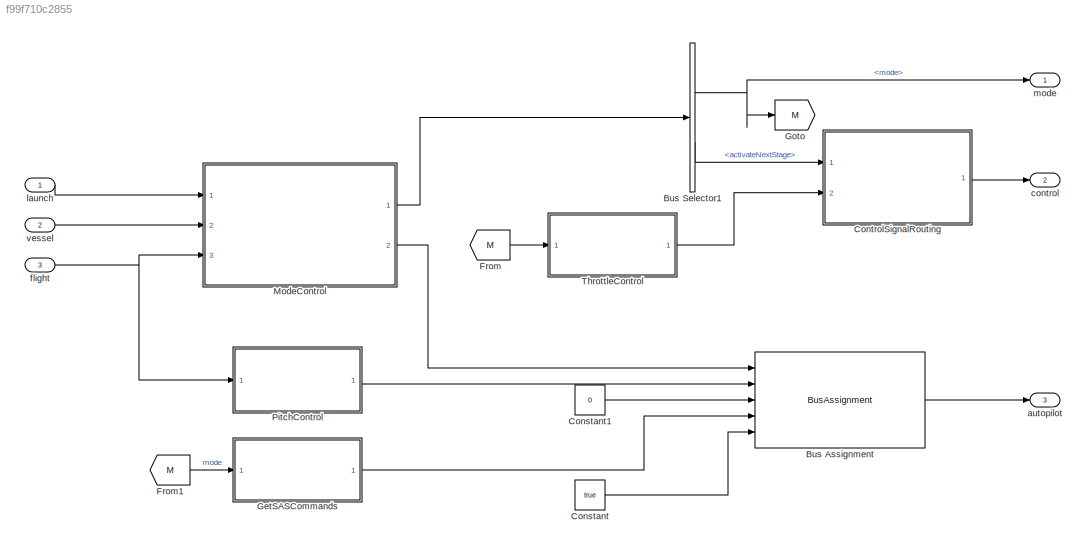
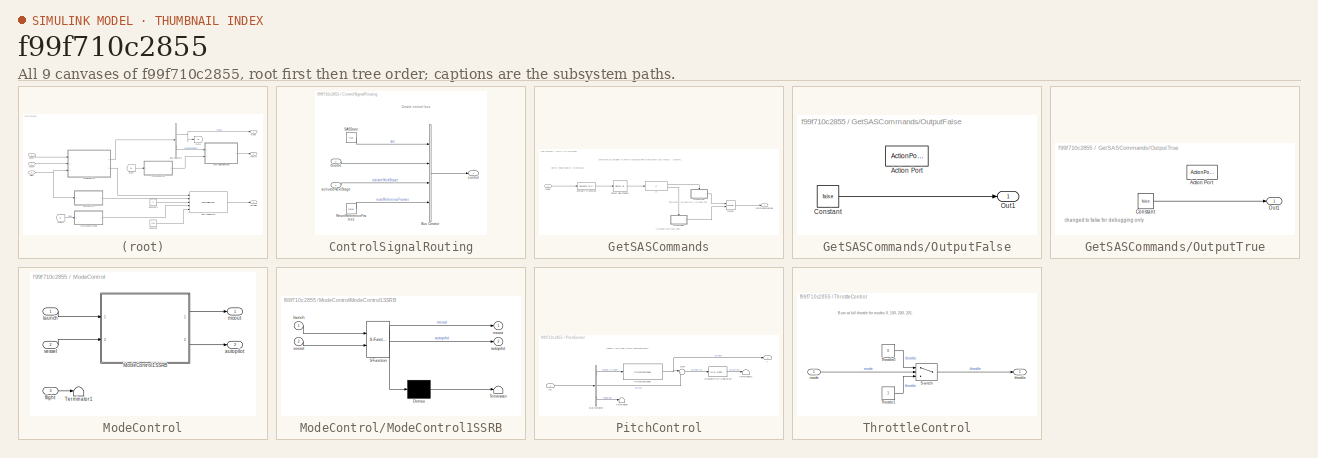
[diagram: thumbnail index - all 9 canvases of the model, root first then tree order]
MODEL slx_f99f710c2855
KIND model
CONFIG AbsTol = auto
CONFIG EnableMultiTasking = off
CONFIG FixedStep = 0.01
CONFIG MaxStep = auto
CONFIG MinStep = auto
CONFIG RelTol = 1e-3
CONFIG SampleTimeConstraint = Unconstrained
CONFIG SolverName = FixedStepAuto
CONFIG StartTime = 0.0
CONFIG StopTime = inf
BLOCK [BusAssignment] Bus Assignment
  AssignedSignals = targetPitch,targetHeading,commandPrograde,engage
  Ports = [5, 1]
BLOCK [BusSelector] Bus Selector1
  OutputSignals = mode,activateNextStage
  Ports = [1, 2]
BLOCK [Constant] Constant
  OutDataTypeStr = boolean
  Value = true
BLOCK [Constant] Constant1
  Value = 0
BLOCK [SubSystem] ControlSignalRouting
  Ports = [2, 1]
  RequestExecContextInheritance = off
BLOCK [BusCreator] ControlSignalRouting/Bus Creator
  DisplayOption = bar
  InheritFromInputs = off
  Inputs = 4
  NonVirtualBus = on
  OutDataTypeStr = Bus: control
  Ports = [4, 1]
BLOCK [Constant] ControlSignalRouting/ResetReferenceFrames
  OutDataTypeStr = boolean
  Value = false
BLOCK [Constant] ControlSignalRouting/SASState
  OutDataTypeStr = boolean
  Value = true
BLOCK [Inport] ControlSignalRouting/activateNextStage
BLOCK [Outport] ControlSignalRouting/control
  OutDataTypeStr = Bus: control
BLOCK [Inport] ControlSignalRouting/throttle
  OutDataTypeStr = double
  Port = 2
  PortDimensions = 1
BLOCK [From] From
  GotoTag = M
BLOCK [From] From1
  GotoTag = M
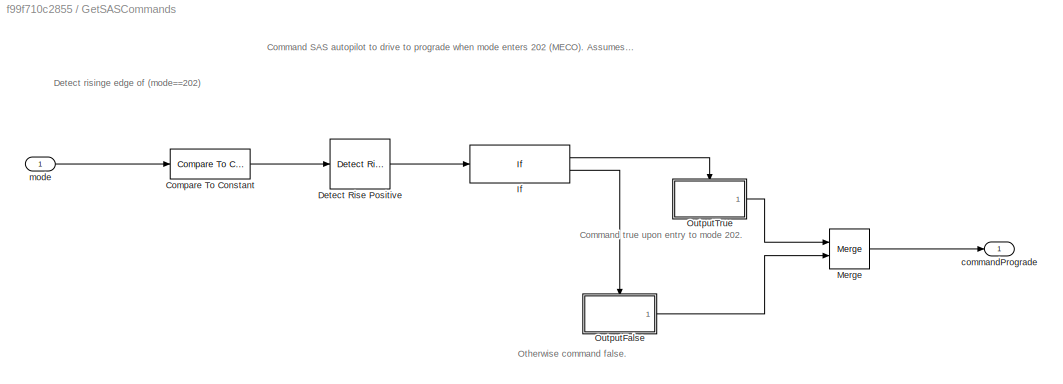
BLOCK [SubSystem] GetSASCommands
  Ports = [1, 1]
  RequestExecContextInheritance = off
BLOCK [Reference] GetSASCommands/Compare To Constant  REF=simulink/Logic and Bit
Operations/Compare
To Constant
  Ports = [1, 1]
  SourceBlock = simulink/Logic and Bit\nOperations/Compare\nTo Constant
  SourceProductBaseCode = SL
  SourceType = Compare To Constant
BLOCK [Reference] GetSASCommands/Detect Rise Positive  REF=simulink/Logic and Bit
Operations/Detect Rise
Positive
  Ports = [1, 1]
  SourceBlock = simulink/Logic and Bit\nOperations/Detect Rise\nPositive
  SourceProductBaseCode = SL
  SourceType = Detect Rise Positive
BLOCK [If] GetSASCommands/If
  IfExpression = u1 ~= 0
  Ports = [1, 2]
BLOCK [Merge] GetSASCommands/Merge
  Ports = [2, 1]
BLOCK [SubSystem] GetSASCommands/OutputFalse
  Ports = [0, 1, 0, 0, 0, 0, 0, 1]
  RequestExecContextInheritance = off
  TreatAsAtomicUnit = on
BLOCK [ActionPort] GetSASCommands/OutputFalse/Action Port
  ActionPortLabel = else
BLOCK [Constant] GetSASCommands/OutputFalse/Constant
  OutDataTypeStr = boolean
  Value = false
BLOCK [Outport] GetSASCommands/OutputFalse/Out1
BLOCK [SubSystem] GetSASCommands/OutputTrue
  Ports = [0, 1, 0, 0, 0, 0, 0, 1]
  RequestExecContextInheritance = off
  TreatAsAtomicUnit = on
BLOCK [ActionPort] GetSASCommands/OutputTrue/Action Port
  ActionPortLabel = if(u1 ~= 0)
BLOCK [Constant] GetSASCommands/OutputTrue/Constant
  OutDataTypeStr = boolean
  Value = false
BLOCK [Outport] GetSASCommands/OutputTrue/Out1
BLOCK [Outport] GetSASCommands/commandPrograde
  OutDataTypeStr = boolean
  PortDimensions = 1
BLOCK [Inport] GetSASCommands/mode
BLOCK [Goto] Goto
  GotoTag = M
BLOCK [SubSystem] ModeControl
  Ports = [3, 2]
  RequestExecContextInheritance = off
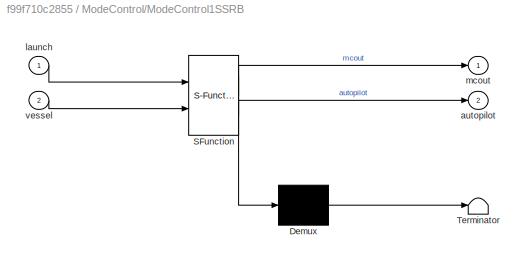
BLOCK [SubSystem] ModeControl/ModeControl1SSRB
  ErrorFcn = Stateflow.Translate.translate
  PermitHierarchicalResolution = ExplicitOnly
  Ports = [2, 2]
  RequestExecContextInheritance = off
  SFBlockType = Chart
  TreatAsAtomicUnit = on
BLOCK [Demux] ModeControl/ModeControl1SSRB/ Demux 
  Outputs = 1
  Ports = [1, 1]
BLOCK [S-Function] ModeControl/ModeControl1SSRB/ SFunction 
  EnableBusSupport = on
  FunctionName = sf_sfun
  PortCounts = [2 3]
  Ports = [2, 3]
  SFcnIsStateOwnerBlock = off
  SFunctionDeploymentMode = off
  Tag = Stateflow S-Function 3
BLOCK [Terminator] ModeControl/ModeControl1SSRB/ Terminator 
BLOCK [Outport] ModeControl/ModeControl1SSRB/autopilot
  Port = 2
BLOCK [Inport] ModeControl/ModeControl1SSRB/launch
BLOCK [Outport] ModeControl/ModeControl1SSRB/mcout
BLOCK [Inport] ModeControl/ModeControl1SSRB/vessel
  Port = 2
BLOCK [Terminator] ModeControl/Terminator1
BLOCK [Outport] ModeControl/autopilot
  Port = 2
BLOCK [Inport] ModeControl/flight
  Port = 3
BLOCK [Inport] ModeControl/launch
BLOCK [Outport] ModeControl/mcout
BLOCK [Inport] ModeControl/vessel
  Port = 2
BLOCK [SubSystem] PitchControl
  Ports = [1, 1]
  RequestExecContextInheritance = off
BLOCK [BusSelector] PitchControl/Bus Selector
  OutputSignals = meanAltitude,pitch,heading
  Ports = [1, 3]
BLOCK [Reference] PitchControl/Discrete PID Controller  REF=pid_lib/PID Controller
  Commented = on
  Ports = [1, 1]
  SourceBlock = pid_lib/PID Controller
  SourceProductBaseCode = SL
  SourceType = PID 1dof
BLOCK [Inport] PitchControl/In1
BLOCK [Reference] PitchControl/PitchCommand  REF=ksplib/PitchCommand  (lib defined in slx_22327d9a050f)
  Ports = [1, 1]
  SourceBlock = ksplib/PitchCommand
  SourceType = Pitch Command
BLOCK [Sum] PitchControl/Sum
  Inputs = |+-
  Ports = [2, 1]
BLOCK [Terminator] PitchControl/Terminator
BLOCK [Terminator] PitchControl/Terminator1
  Commented = on
BLOCK [Outport] PitchControl/y
BLOCK [SubSystem] ThrottleControl
  Ports = [1, 1]
  RequestExecContextInheritance = off
BLOCK [Switch] ThrottleControl/Switch
  Criteria = u2 > Threshold
  InputSameDT = off
  SaturateOnIntegerOverflow = off
  Threshold = 201
BLOCK [Constant] ThrottleControl/Throttle0
  OutDataTypeStr = double
  Value = 0
BLOCK [Constant] ThrottleControl/Throttle1
  OutDataTypeStr = double
BLOCK [Inport] ThrottleControl/mode
BLOCK [Outport] ThrottleControl/throttle
  OutDataTypeStr = double
  OutMax = 1
  OutMin = 0
BLOCK [Outport] autopilot
  OutDataTypeStr = Bus: autopilot
  Port = 3
BLOCK [Outport] control
  OutDataTypeStr = Bus: control
  Port = 2
BLOCK [Inport] flight
  OutDataTypeStr = Bus: flight
  Port = 3
BLOCK [Inport] launch
  OutDataTypeStr = boolean
  PortDimensions = 1
BLOCK [Outport] mode
BLOCK [Inport] vessel
  OutDataTypeStr = Bus: vesselRx
  Port = 2
ANNOTATION ControlSignalRouting: Create control bus
ANNOTATION GetSASCommands: Command SAS autopilot to drive to prograde when mode enters 202 (MECO). Assumes SAS is enabled.
ANNOTATION GetSASCommands: Command true upon entry to mode 202.
ANNOTATION GetSASCommands: Detect risinge edge of (mode==202)
ANNOTATION GetSASCommands: Otherwise command false.
ANNOTATION GetSASCommands/OutputTrue: changed to false for debugging only
ANNOTATION PitchControl: Specify (altitude, pitch) command pairs.
ANNOTATION ThrottleControl: Burn at full throttle for modes 0, 100, 200, 201.
LINE Bus Assignment:1 -> autopilot:1
NET Bus Selector1:1 -> Goto:1, mode:1
LINE Bus Selector1:2 -> ControlSignalRouting:1
LINE Constant1:1 -> Bus Assignment:3
LINE Constant:1 -> Bus Assignment:5
LINE ControlSignalRouting/Bus Creator:1 -> ControlSignalRouting/control:1
LINE ControlSignalRouting/ResetReferenceFrames:1 -> ControlSignalRouting/Bus Creator:4
LINE ControlSignalRouting/SASState:1 -> ControlSignalRouting/Bus Creator:1
LINE ControlSignalRouting/activateNextStage:1 -> ControlSignalRouting/Bus Creator:3
LINE ControlSignalRouting/throttle:1 -> ControlSignalRouting/Bus Creator:2
LINE ControlSignalRouting:1 -> control:1
LINE From1:1 -> GetSASCommands:1
LINE From:1 -> ThrottleControl:1
LINE GetSASCommands/Compare To Constant:1 -> GetSASCommands/Detect Rise Positive:1
LINE GetSASCommands/Detect Rise Positive:1 -> GetSASCommands/If:1
LINE GetSASCommands/If:1 -> GetSASCommands/OutputTrue:ifaction
LINE GetSASCommands/If:2 -> GetSASCommands/OutputFalse:ifaction
LINE GetSASCommands/Merge:1 -> GetSASCommands/commandPrograde:1
LINE GetSASCommands/OutputFalse/Constant:1 -> GetSASCommands/OutputFalse/Out1:1
LINE GetSASCommands/OutputFalse:1 -> GetSASCommands/Merge:2
LINE GetSASCommands/OutputTrue/Constant:1 -> GetSASCommands/OutputTrue/Out1:1
LINE GetSASCommands/OutputTrue:1 -> GetSASCommands/Merge:1
LINE GetSASCommands/mode:1 -> GetSASCommands/Compare To Constant:1
LINE GetSASCommands:1 -> Bus Assignment:4
LINE ModeControl/ModeControl1SSRB:1 -> ModeControl/mcout:1
LINE ModeControl/ModeControl1SSRB:2 -> ModeControl/autopilot:1
LINE ModeControl/flight:1 -> ModeControl/Terminator1:1
LINE ModeControl/launch:1 -> ModeControl/ModeControl1SSRB:1
LINE ModeControl/vessel:1 -> ModeControl/ModeControl1SSRB:2
LINE ModeControl:1 -> Bus Selector1:1
LINE ModeControl:2 -> Bus Assignment:1
LINE PitchControl/Bus Selector:1 -> PitchControl/PitchCommand:1
LINE PitchControl/Bus Selector:2 -> PitchControl/Sum:2
LINE PitchControl/Bus Selector:3 -> PitchControl/Terminator:1
LINE PitchControl/Discrete PID Controller:1 -> PitchControl/Terminator1:1
LINE PitchControl/In1:1 -> PitchControl/Bus Selector:1
NET PitchControl/PitchCommand:1 -> PitchControl/Sum:1, PitchControl/y:1
LINE PitchControl/Sum:1 -> PitchControl/Discrete PID Controller:1
LINE PitchControl:1 -> Bus Assignment:2
LINE ThrottleControl/Switch:1 -> ThrottleControl/throttle:1
LINE ThrottleControl/Throttle0:1 -> ThrottleControl/Switch:1
LINE ThrottleControl/Throttle1:1 -> ThrottleControl/Switch:3
LINE ThrottleControl/mode:1 -> ThrottleControl/Switch:2
LINE ThrottleControl:1 -> ControlSignalRouting:2
NET flight:1 -> ModeControl:3, PitchControl:1
LINE launch:1 -> ModeControl:1
LINE vessel:1 -> ModeControl:2
note: NET lines group one-source signal fan-out (src -> all destinations, sorted); 1:1 wires keep LINE
CHART ModeControl/ModeControl1SSRB states=11 transitions=9
  STATE_LABEL 'Guidance moding logic for a two-stage liquid fuel rocket.'
  STATE_LABEL 'Stage 1 separation is triggered when stage 1 liquid fuel is spent.'
  STATE_LABEL 'Stage separation'
  STATE_LABEL 'Stage 2 burn'
  STATE_LABEL 'Prelaunch\n\nen:\nmcout.mode = int16(-100);\nautopilot.targetPitch = 90;\nautopilot.targetHeading = 90;\nautopilot.engage = true;'
  STATE_LABEL 'Launch\n\nen:\nmcout.mode = int16(0);'
  STATE_LABEL 'PreFlightChecks\n\nen:\n% to do: add prelaunch check logic\nlaunchChecksOK = true;'
  STATE_LABEL 'PreFlightChecks\n\nen:\n% to do: add prelaunch check logic\nlaunchChecksOK = true;'
  STATE_LABEL 'Stage1\n\nen:\nmcout.mode = int16(100);\ndu:\nif ~launchCmdSent\n    mcout.activateNextStage = true;\n    launchCmdSent = true;\nelse\n    mcout.activateNextStage = false;\nend'
  STATE_LABEL 'Stage1Separation\n\nen:\nmcout.mode = int16(200);\ndu:\nif ~stage1sepCmdSent\n    mcout.activateNextStage = true;\n    stage1sepCmdSent = true;\nelse\n    mcout.activateNextStage = false;\nend'
  STATE_LABEL 'Stage2\n\nen:\nmcout.mode = int16(201);\ndu:\nif ~stage2ignitionCmdSent\n    mcout.activateNextStage = true;\n    stage2ignitionCmdSent = true;\nelse\n    mcout.activateNextStage = false;\nend'
  STATE_LABEL 'MECO\n\nen:\nmcout.mode = int16(202);\ndu:\n% do nothing'
CHART  states=0 transitions=0
